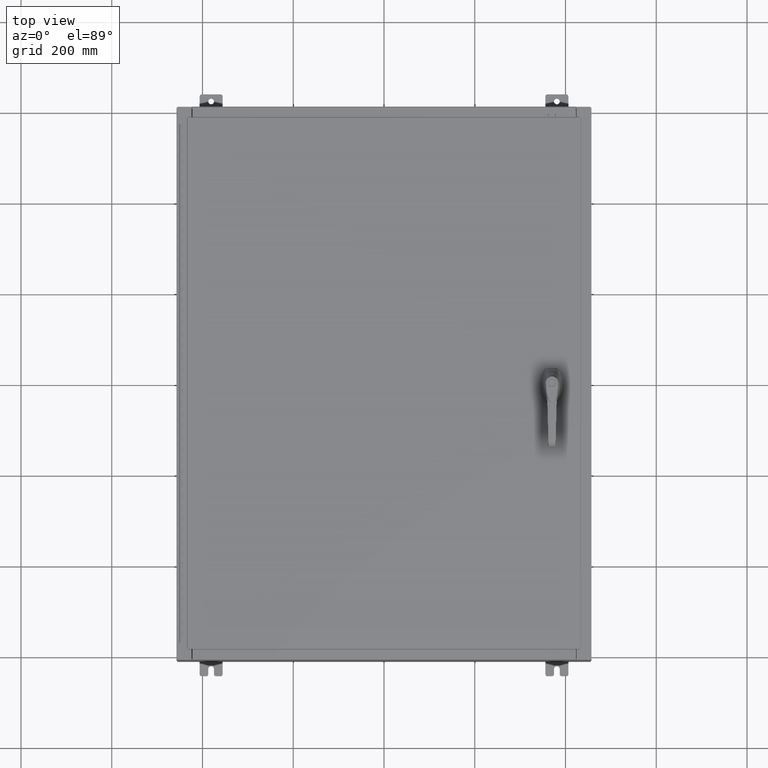
[diagram: clean part render]
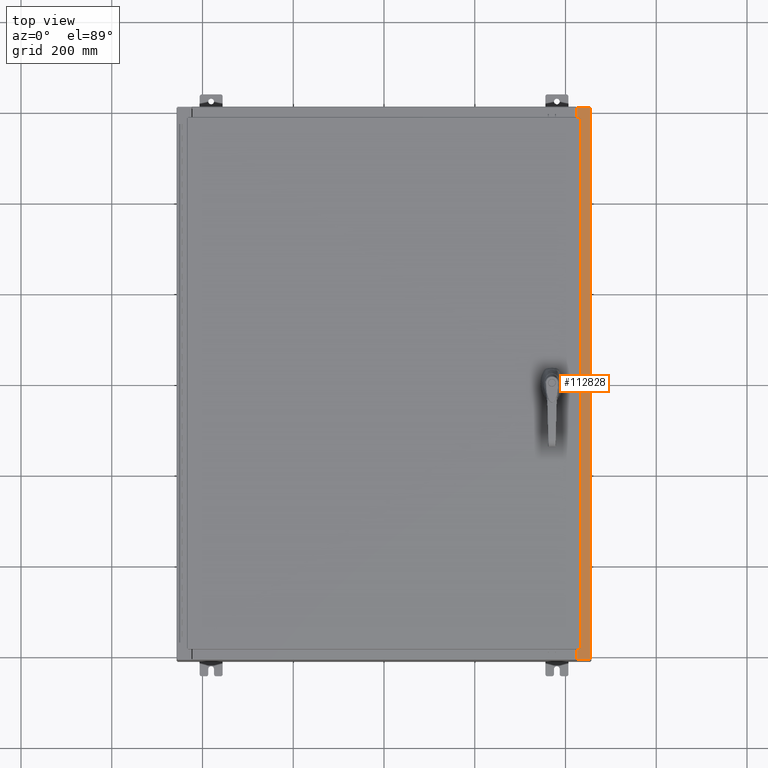
[diagram: same view with one face highlighted and labeled with its STEP entity id]
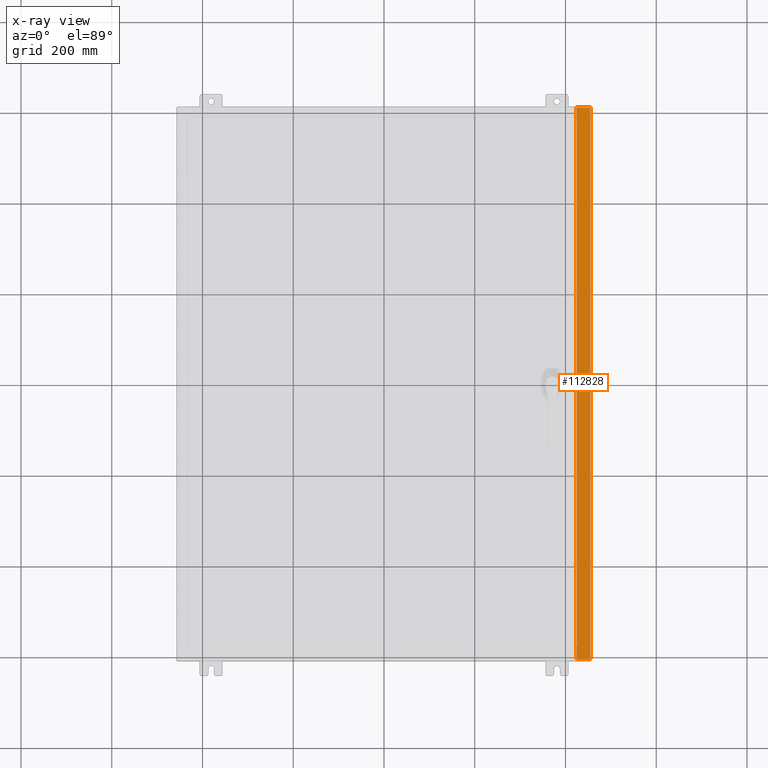
[diagram: x-ray of the same camera — body ghosted, the highlighted face saturated]
A machine part, top view. The second image highlights one B-rep face of the part: STEP entity #112828.
The next image is the same camera in x-ray: the body ghosted, the highlighted face saturated — about 0% of this face is hidden behind the body in this view.
In plain terms, the highlighted planar face has unit normal (-0, 0, -1).
Its self-contained STEP definition (entity closure, byte-faithful):
#1424 = CARTESIAN_POINT ( 'NONE',  ( 16.71270000000003400, -22.59374999999998900, 9.925300000000010700 ) ) ;
#1489 = CARTESIAN_POINT ( 'NONE',  ( 16.75005000000003400, 22.59374999999995400, 9.925300000000008900 ) ) ;
#1665 = CARTESIAN_POINT ( 'NONE',  ( 16.69970000000003200, -5.350181231484365000E-030, 9.925300000000008900 ) ) ;
#3356 = CARTESIAN_POINT ( 'NONE',  ( 16.71270000000003400, -22.59374999999997900, 9.925300000000010700 ) ) ;
#5277 = CIRCLE ( 'NONE', #55738, 0.01867499999999949400 ) ;
#8366 = LINE ( 'NONE', #131967, #115394 ) ;
#10820 = VERTEX_POINT ( 'NONE', #20457 ) ;
#11369 = EDGE_CURVE ( 'NONE', #125814, #105163, #23758, .T. ) ;
#11400 = FACE_OUTER_BOUND ( 'NONE', #13016, .T. ) ;
#12478 = VECTOR ( 'NONE', #44608, 39.37007874015748100 ) ;
#13016 = EDGE_LOOP ( 'NONE', ( #125834, #116204, #55895, #13423, #13817, #21720, #33848, #111440, #46110, #98682, #91313, #96295 ) ) ;
#13423 = ORIENTED_EDGE ( 'NONE', *, *, #20945, .F. ) ;
#13817 = ORIENTED_EDGE ( 'NONE', *, *, #97303, .T. ) ;
#14417 = VECTOR ( 'NONE', #45150, 39.37007874015748100 ) ;
#14919 = CARTESIAN_POINT ( 'NONE',  ( 16.69970000000003200, 22.63109999999995000, 9.925300000000008900 ) ) ;
#17250 = CARTESIAN_POINT ( 'NONE',  ( 16.75005000000003400, -22.59374999999998900, 9.925300000000008900 ) ) ;
#17947 = CARTESIAN_POINT ( 'NONE',  ( 16.75005000000003400, -22.63109999999998600, 9.925300000000008900 ) ) ;
#19458 = LINE ( 'NONE', #76701, #126390 ) ;
#20457 = CARTESIAN_POINT ( 'NONE',  ( 16.75005000000003400, 22.63109999999995000, 9.925300000000008900 ) ) ;
#20536 = EDGE_CURVE ( 'NONE', #47129, #10820, #5277, .T. ) ;
#20945 = EDGE_CURVE ( 'NONE', #26668, #124641, #131687, .T. ) ;
#21490 = VECTOR ( 'NONE', #130683, 39.37007874015748100 ) ;
#21720 = ORIENTED_EDGE ( 'NONE', *, *, #119901, .T. ) ;
#22084 = DIRECTION ( 'NONE',  ( 5.349571789159788500E-015, 0.0000000000000000000, 1.000000000000000000 ) ) ;
#22954 = DIRECTION ( 'NONE',  ( -1.000000000000000000, 0.0000000000000000000, 5.349571789159788500E-015 ) ) ;
#23140 = CARTESIAN_POINT ( 'NONE',  ( 16.69970000000003200, -22.63109999999998600, 9.925300000000008900 ) ) ;
#23353 = CARTESIAN_POINT ( 'NONE',  ( 16.69970000000003200, -22.63109999999998600, 9.925300000000010700 ) ) ;
#23758 = LINE ( 'NONE', #23353, #127465 ) ;
#26668 = VERTEX_POINT ( 'NONE', #92722 ) ;
#28422 = VERTEX_POINT ( 'NONE', #1424 ) ;
#31994 = LINE ( 'NONE', #75913, #108202 ) ;
#33848 = ORIENTED_EDGE ( 'NONE', *, *, #113106, .F. ) ;
#36920 = VERTEX_POINT ( 'NONE', #90132 ) ;
#37586 = EDGE_CURVE ( 'NONE', #105163, #54726, #75864, .T. ) ;
#39388 = DIRECTION ( 'NONE',  ( 5.349571789159788500E-015, 0.0000000000000000000, 1.000000000000000000 ) ) ;
#39980 = LINE ( 'NONE', #3356, #12478 ) ;
#43491 = DIRECTION ( 'NONE',  ( -1.000000000000000000, 0.0000000000000000000, 5.349571789159789300E-015 ) ) ;
#44608 = DIRECTION ( 'NONE',  ( -0.0000000000000000000, 1.000000000000000000, -0.0000000000000000000 ) ) ;
#45150 = DIRECTION ( 'NONE',  ( -3.203758888773074600E-031, -1.000000000000000000, 1.713873817065035100E-045 ) ) ;
#46110 = ORIENTED_EDGE ( 'NONE', *, *, #87115, .F. ) ;
#46840 = VECTOR ( 'NONE', #50061, 39.37007874015748100 ) ;
#47129 = VERTEX_POINT ( 'NONE', #1489 ) ;
#47752 = CARTESIAN_POINT ( 'NONE',  ( 17.91230000000003000, -23.92529999999998900, 9.925300000000001800 ) ) ;
#48926 = VECTOR ( 'NONE', #63807, 39.37007874015748100 ) ;
#50061 = DIRECTION ( 'NONE',  ( 1.000000000000000000, 0.0000000000000000000, 0.0000000000000000000 ) ) ;
#51117 = AXIS2_PLACEMENT_3D ( 'NONE', #101495, #39388, #111962 ) ;
#53058 = EDGE_CURVE ( 'NONE', #36920, #124641, #8366, .T. ) ;
#54726 = VERTEX_POINT ( 'NONE', #17250 ) ;
#55738 = AXIS2_PLACEMENT_3D ( 'NONE', #84163, #22084, #94583 ) ;
#55895 = ORIENTED_EDGE ( 'NONE', *, *, #53058, .T. ) ;
#63538 = EDGE_CURVE ( 'NONE', #28422, #104663, #39980, .T. ) ;
#63807 = DIRECTION ( 'NONE',  ( -3.203758888773074600E-031, -1.000000000000000000, 1.713873817065035100E-045 ) ) ;
#73268 = LINE ( 'NONE', #1665, #48926 ) ;
#73831 = CARTESIAN_POINT ( 'NONE',  ( 16.71270000000003400, 22.59374999999995400, 9.925300000000010700 ) ) ;
#74635 = PLANE ( 'NONE',  #108715 ) ;
#75864 = CIRCLE ( 'NONE', #51117, 0.01867499999999949400 ) ;
#75913 = CARTESIAN_POINT ( 'NONE',  ( 16.75005000000003400, -22.59374999999998900, 9.925300000000010700 ) ) ;
#76701 = CARTESIAN_POINT ( 'NONE',  ( 16.75005000000003400, 22.63109999999995000, 9.925300000000010700 ) ) ;
#84163 = CARTESIAN_POINT ( 'NONE',  ( 16.75005000000003400, 22.61242499999995200, 9.925300000000010700 ) ) ;
#84653 = EDGE_CURVE ( 'NONE', #125814, #36920, #73268, .T. ) ;
#85053 = DIRECTION ( 'NONE',  ( -5.349571789159788500E-015, 0.0000000000000000000, -1.000000000000000000 ) ) ;
#87115 = EDGE_CURVE ( 'NONE', #104663, #47129, #129493, .T. ) ;
#88957 = VERTEX_POINT ( 'NONE', #89260 ) ;
#89260 = CARTESIAN_POINT ( 'NONE',  ( 16.69970000000003200, 23.92529999999998200, 9.925300000000008900 ) ) ;
#89985 = EDGE_CURVE ( 'NONE', #54726, #28422, #31994, .T. ) ;
#90132 = CARTESIAN_POINT ( 'NONE',  ( 16.69970000000003200, -23.92529999999998900, 9.925300000000008900 ) ) ;
#90775 = DIRECTION ( 'NONE',  ( 1.000000000000000000, 8.144358738339257800E-032, -5.349571789159789300E-015 ) ) ;
#91313 = ORIENTED_EDGE ( 'NONE', *, *, #89985, .F. ) ;
#92722 = CARTESIAN_POINT ( 'NONE',  ( 17.91230000000003000, 23.92529999999998600, 9.925300000000001800 ) ) ;
#94583 = DIRECTION ( 'NONE',  ( 1.000000000000000000, 0.0000000000000000000, 0.0000000000000000000 ) ) ;
#96295 = ORIENTED_EDGE ( 'NONE', *, *, #37586, .F. ) ;
#97124 = LINE ( 'NONE', #117202, #14417 ) ;
#97303 = EDGE_CURVE ( 'NONE', #26668, #88957, #129580, .T. ) ;
#97936 = DIRECTION ( 'NONE',  ( -1.000000000000000000, 0.0000000000000000000, 0.0000000000000000000 ) ) ;
#98682 = ORIENTED_EDGE ( 'NONE', *, *, #63538, .F. ) ;
#101495 = CARTESIAN_POINT ( 'NONE',  ( 16.75005000000003400, -22.61242499999998800, 9.925300000000010700 ) ) ;
#102027 = VECTOR ( 'NONE', #43491, 39.37007874015748100 ) ;
#102249 = DIRECTION ( 'NONE',  ( 1.000000000000000000, 0.0000000000000000000, 0.0000000000000000000 ) ) ;
#102862 = VERTEX_POINT ( 'NONE', #14919 ) ;
#104663 = VERTEX_POINT ( 'NONE', #73831 ) ;
#105163 = VERTEX_POINT ( 'NONE', #17947 ) ;
#105592 = CARTESIAN_POINT ( 'NONE',  ( 5.335691853495976800E-014, 23.92529999999998600, 9.925300000000099500 ) ) ;
#108202 = VECTOR ( 'NONE', #117108, 39.37007874015748100 ) ;
#108715 = AXIS2_PLACEMENT_3D ( 'NONE', #115824, #85053, #22954 ) ;
#111440 = ORIENTED_EDGE ( 'NONE', *, *, #20536, .F. ) ;
#111962 = DIRECTION ( 'NONE',  ( 1.000000000000000000, 0.0000000000000000000, 0.0000000000000000000 ) ) ;
#112828 = ADVANCED_FACE ( 'NONE', ( #11400 ), #74635, .F. ) ;
#113106 = EDGE_CURVE ( 'NONE', #10820, #102862, #19458, .T. ) ;
#115394 = VECTOR ( 'NONE', #90775, 39.37007874015748100 ) ;
#115824 = CARTESIAN_POINT ( 'NONE',  ( 5.335691853495976800E-014, 0.0000000000000000000, 9.925300000000099500 ) ) ;
#116204 = ORIENTED_EDGE ( 'NONE', *, *, #84653, .T. ) ;
#117108 = DIRECTION ( 'NONE',  ( -1.000000000000000000, 0.0000000000000000000, 0.0000000000000000000 ) ) ;
#117202 = CARTESIAN_POINT ( 'NONE',  ( 16.69970000000003200, -5.350181231484365000E-030, 9.925300000000008900 ) ) ;
#119901 = EDGE_CURVE ( 'NONE', #88957, #102862, #97124, .T. ) ;
#124641 = VERTEX_POINT ( 'NONE', #47752 ) ;
#125814 = VERTEX_POINT ( 'NONE', #23140 ) ;
#125834 = ORIENTED_EDGE ( 'NONE', *, *, #11369, .F. ) ;
#126390 = VECTOR ( 'NONE', #97936, 39.37007874015748100 ) ;
#127465 = VECTOR ( 'NONE', #102249, 39.37007874015748100 ) ;
#129493 = LINE ( 'NONE', #132970, #46840 ) ;
#129580 = LINE ( 'NONE', #105592, #102027 ) ;
#130229 = CARTESIAN_POINT ( 'NONE',  ( 17.91230000000003000, -23.92529999999998900, 9.925300000000001800 ) ) ;
#130683 = DIRECTION ( 'NONE',  ( -0.0000000000000000000, -1.000000000000000000, -0.0000000000000000000 ) ) ;
#131687 = LINE ( 'NONE', #130229, #21490 ) ;
#131967 = CARTESIAN_POINT ( 'NONE',  ( 5.335691853495976800E-014, -23.92529999999998900, 9.925300000000099500 ) ) ;
#132970 = CARTESIAN_POINT ( 'NONE',  ( 16.71270000000003400, 22.59374999999995400, 9.925300000000010700 ) ) ;